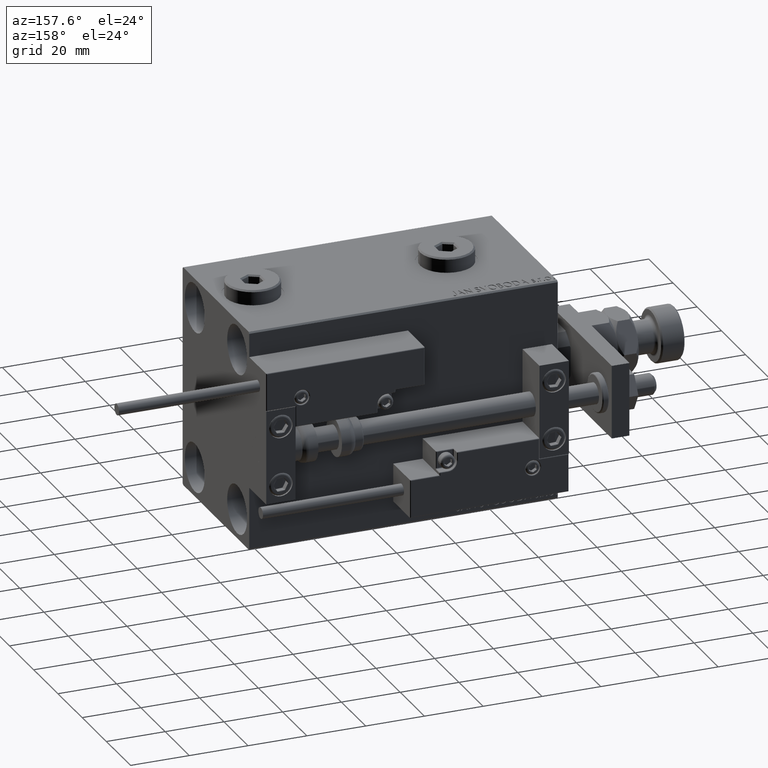
[diagram: clean part render]
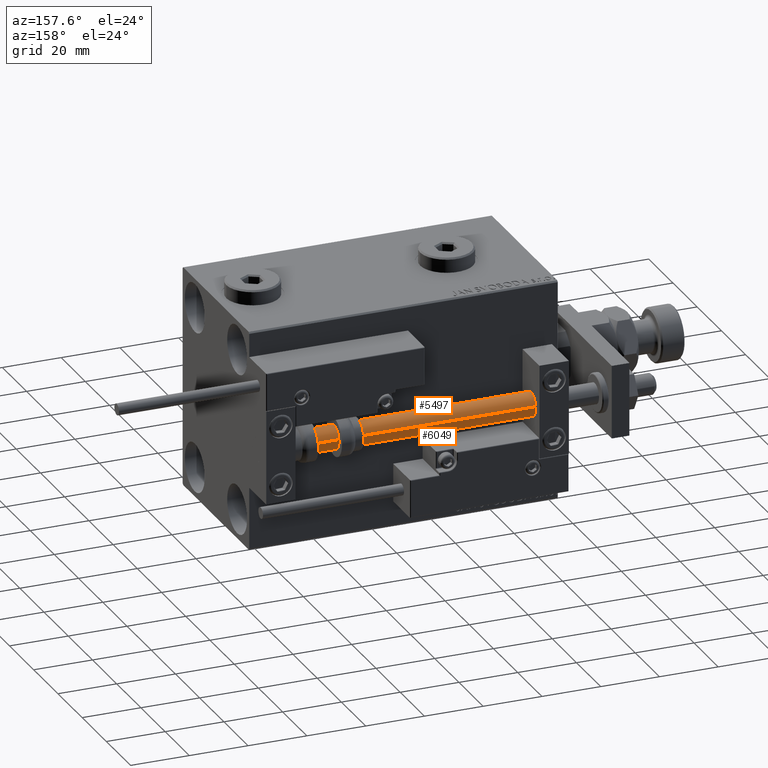
[diagram: same view with one multi-face feature highlighted, each face labeled with its STEP entity id]
A machine part, auxiliary view. The highlighted faces form ONE feature: a constant-radius fillet chain: 2 tangent blend faces with common blend radius 4 mm. The faces share edges in the B-rep.
Their STEP definitions:
[1] entity #6049 (Cylinder):
#311 = DIRECTION ( 'NONE',  ( 1.000000000000000000, 0.000000000000000000, 0.000000000000000000 ) ) ;
#650 = ORIENTED_EDGE ( 'NONE', *, *, #29500, .T. ) ;
#768 = ORIENTED_EDGE ( 'NONE', *, *, #14454, .T. ) ;
#1569 = VERTEX_POINT ( 'NONE', #10346 ) ;
#2122 = DIRECTION ( 'NONE',  ( -0.000000000000000000, -0.000000000000000000, -1.000000000000000000 ) ) ;
#2335 = AXIS2_PLACEMENT_3D ( 'NONE', #20779, #46019, #311 ) ;
#5894 = CYLINDRICAL_SURFACE ( 'NONE', #31191, 4.000000000000000000 ) ;
#6049 = ADVANCED_FACE ( 'NONE', ( #38704 ), #5894, .T. ) ;
#7318 = LINE ( 'NONE', #23736, #34482 ) ;
#7360 = DIRECTION ( 'NONE',  ( -0.000000000000000000, -0.000000000000000000, -1.000000000000000000 ) ) ;
#10346 = CARTESIAN_POINT ( 'NONE',  ( -4.000000000000000000, 0.000000000000000000, 105.0000000000000000 ) ) ;
#13641 = CIRCLE ( 'NONE', #48854, 4.000000000000000000 ) ;
#14454 = EDGE_CURVE ( 'NONE', #1569, #26418, #52520, .T. ) ;
#14896 = CARTESIAN_POINT ( 'NONE',  ( -4.000000000000000000, 0.000000000000000000, 105.0000000000000000 ) ) ;
#16784 = DIRECTION ( 'NONE',  ( -0.000000000000000000, -0.000000000000000000, 1.000000000000000000 ) ) ;
#18797 = CARTESIAN_POINT ( 'NONE',  ( 0.000000000000000000, 0.000000000000000000, 105.0000000000000000 ) ) ;
#19854 = EDGE_CURVE ( 'NONE', #1569, #45114, #39288, .T. ) ;
#20779 = CARTESIAN_POINT ( 'NONE',  ( 0.000000000000000000, 0.000000000000000000, 105.0000000000000000 ) ) ;
#23725 = EDGE_LOOP ( 'NONE', ( #40288, #27916, #768, #650 ) ) ;
#23736 = CARTESIAN_POINT ( 'NONE',  ( 4.000000000000000000, 4.898587196589412829E-16, 105.0000000000000000 ) ) ;
#25193 = CARTESIAN_POINT ( 'NONE',  ( -4.000000000000000000, 0.000000000000000000, 2.000000000000029310 ) ) ;
#26418 = VERTEX_POINT ( 'NONE', #25193 ) ;
#27916 = ORIENTED_EDGE ( 'NONE', *, *, #19854, .F. ) ;
#29500 = EDGE_CURVE ( 'NONE', #26418, #32751, #13641, .T. ) ;
#30370 = DIRECTION ( 'NONE',  ( -1.000000000000000000, 0.000000000000000000, 0.000000000000000000 ) ) ;
#31191 = AXIS2_PLACEMENT_3D ( 'NONE', #18797, #2122, #30370 ) ;
#32052 = DIRECTION ( 'NONE',  ( -0.000000000000000000, -0.000000000000000000, -1.000000000000000000 ) ) ;
#32238 = VECTOR ( 'NONE', #7360, 1000.000000000000000 ) ;
#32751 = VERTEX_POINT ( 'NONE', #46245 ) ;
#34482 = VECTOR ( 'NONE', #32052, 1000.000000000000000 ) ;
#37219 = DIRECTION ( 'NONE',  ( 1.000000000000000000, 0.000000000000000000, 0.000000000000000000 ) ) ;
#38704 = FACE_OUTER_BOUND ( 'NONE', #23725, .T. ) ;
#38737 = EDGE_CURVE ( 'NONE', #45114, #32751, #7318, .T. ) ;
#39288 = CIRCLE ( 'NONE', #2335, 4.000000000000000000 ) ;
#40288 = ORIENTED_EDGE ( 'NONE', *, *, #38737, .F. ) ;
#45114 = VERTEX_POINT ( 'NONE', #50886 ) ;
#46019 = DIRECTION ( 'NONE',  ( 0.000000000000000000, 0.000000000000000000, 1.000000000000000000 ) ) ;
#46245 = CARTESIAN_POINT ( 'NONE',  ( 4.000000000000000000, 4.898587196589412829E-16, 2.000000000000029310 ) ) ;
#48792 = CARTESIAN_POINT ( 'NONE',  ( 0.000000000000000000, 0.000000000000000000, 2.000000000000029310 ) ) ;
#48854 = AXIS2_PLACEMENT_3D ( 'NONE', #48792, #16784, #37219 ) ;
#50886 = CARTESIAN_POINT ( 'NONE',  ( 4.000000000000000000, 4.898587196589412829E-16, 105.0000000000000000 ) ) ;
#52520 = LINE ( 'NONE', #14896, #32238 ) ;
[2] entity #5497 (Cylinder):
#1569 = VERTEX_POINT ( 'NONE', #10346 ) ;
#1830 = ORIENTED_EDGE ( 'NONE', *, *, #27028, .T. ) ;
#2858 = ORIENTED_EDGE ( 'NONE', *, *, #14454, .F. ) ;
#5497 = ADVANCED_FACE ( 'NONE', ( #23842 ), #40232, .T. ) ;
#6251 = DIRECTION ( 'NONE',  ( -0.000000000000000000, -0.000000000000000000, 1.000000000000000000 ) ) ;
#7318 = LINE ( 'NONE', #23736, #34482 ) ;
#7360 = DIRECTION ( 'NONE',  ( -0.000000000000000000, -0.000000000000000000, -1.000000000000000000 ) ) ;
#7599 = CARTESIAN_POINT ( 'NONE',  ( 0.000000000000000000, 0.000000000000000000, 105.0000000000000000 ) ) ;
#7737 = EDGE_LOOP ( 'NONE', ( #23041, #41336, #1830, #2858 ) ) ;
#10346 = CARTESIAN_POINT ( 'NONE',  ( -4.000000000000000000, 0.000000000000000000, 105.0000000000000000 ) ) ;
#14454 = EDGE_CURVE ( 'NONE', #1569, #26418, #52520, .T. ) ;
#14896 = CARTESIAN_POINT ( 'NONE',  ( -4.000000000000000000, 0.000000000000000000, 105.0000000000000000 ) ) ;
#15762 = DIRECTION ( 'NONE',  ( -1.000000000000000000, 0.000000000000000000, 0.000000000000000000 ) ) ;
#16120 = CIRCLE ( 'NONE', #53036, 4.000000000000000000 ) ;
#16202 = DIRECTION ( 'NONE',  ( 1.000000000000000000, 0.000000000000000000, 0.000000000000000000 ) ) ;
#19274 = DIRECTION ( 'NONE',  ( -0.000000000000000000, -0.000000000000000000, -1.000000000000000000 ) ) ;
#22607 = AXIS2_PLACEMENT_3D ( 'NONE', #51788, #19274, #15762 ) ;
#23041 = ORIENTED_EDGE ( 'NONE', *, *, #43592, .F. ) ;
#23736 = CARTESIAN_POINT ( 'NONE',  ( 4.000000000000000000, 4.898587196589412829E-16, 105.0000000000000000 ) ) ;
#23842 = FACE_OUTER_BOUND ( 'NONE', #7737, .T. ) ;
#24367 = AXIS2_PLACEMENT_3D ( 'NONE', #7599, #31542, #16202 ) ;
#25193 = CARTESIAN_POINT ( 'NONE',  ( -4.000000000000000000, 0.000000000000000000, 2.000000000000029310 ) ) ;
#25204 = CIRCLE ( 'NONE', #24367, 4.000000000000000000 ) ;
#26418 = VERTEX_POINT ( 'NONE', #25193 ) ;
#27028 = EDGE_CURVE ( 'NONE', #32751, #26418, #16120, .T. ) ;
#31542 = DIRECTION ( 'NONE',  ( 0.000000000000000000, 0.000000000000000000, 1.000000000000000000 ) ) ;
#32052 = DIRECTION ( 'NONE',  ( -0.000000000000000000, -0.000000000000000000, -1.000000000000000000 ) ) ;
#32238 = VECTOR ( 'NONE', #7360, 1000.000000000000000 ) ;
#32751 = VERTEX_POINT ( 'NONE', #46245 ) ;
#34482 = VECTOR ( 'NONE', #32052, 1000.000000000000000 ) ;
#38737 = EDGE_CURVE ( 'NONE', #45114, #32751, #7318, .T. ) ;
#40232 = CYLINDRICAL_SURFACE ( 'NONE', #22607, 4.000000000000000000 ) ;
#41336 = ORIENTED_EDGE ( 'NONE', *, *, #38737, .T. ) ;
#43102 = CARTESIAN_POINT ( 'NONE',  ( 0.000000000000000000, 0.000000000000000000, 2.000000000000029310 ) ) ;
#43592 = EDGE_CURVE ( 'NONE', #45114, #1569, #25204, .T. ) ;
#45114 = VERTEX_POINT ( 'NONE', #50886 ) ;
#46245 = CARTESIAN_POINT ( 'NONE',  ( 4.000000000000000000, 4.898587196589412829E-16, 2.000000000000029310 ) ) ;
#50886 = CARTESIAN_POINT ( 'NONE',  ( 4.000000000000000000, 4.898587196589412829E-16, 105.0000000000000000 ) ) ;
#51420 = DIRECTION ( 'NONE',  ( 1.000000000000000000, 0.000000000000000000, 0.000000000000000000 ) ) ;
#51788 = CARTESIAN_POINT ( 'NONE',  ( 0.000000000000000000, 0.000000000000000000, 105.0000000000000000 ) ) ;
#52520 = LINE ( 'NONE', #14896, #32238 ) ;
#53036 = AXIS2_PLACEMENT_3D ( 'NONE', #43102, #6251, #51420 ) ;